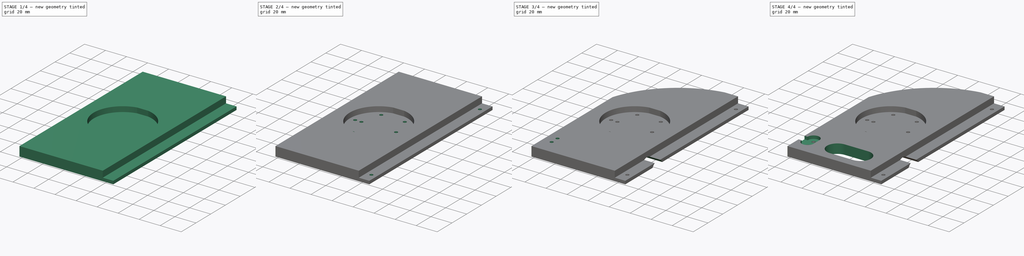
[diagram: build sequence overview — one tinted view per stage of 4, left to right]
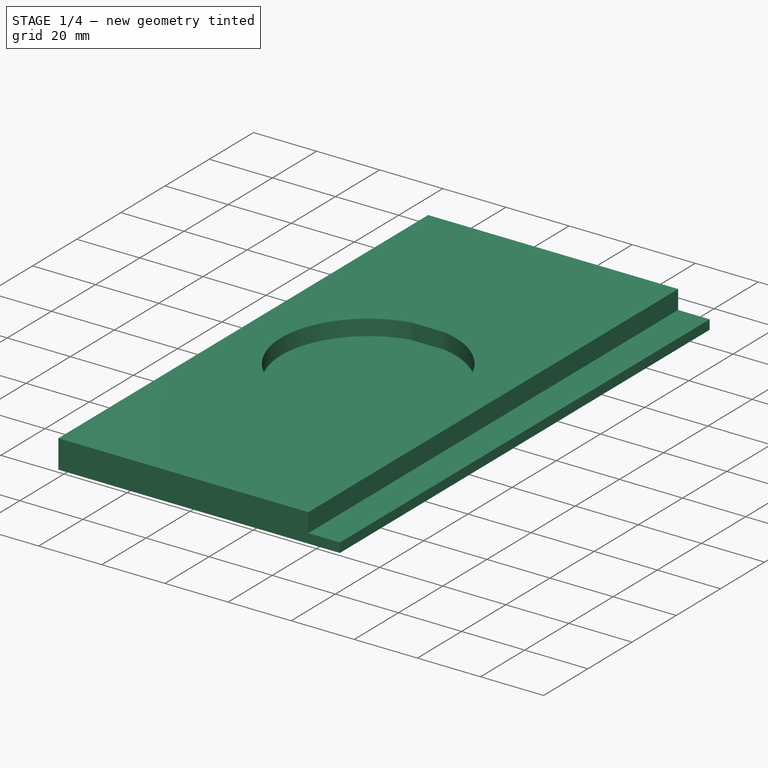
[diagram: stage 1 of 4 — iso view after this stage's code; geometry added in this stage tinted green]
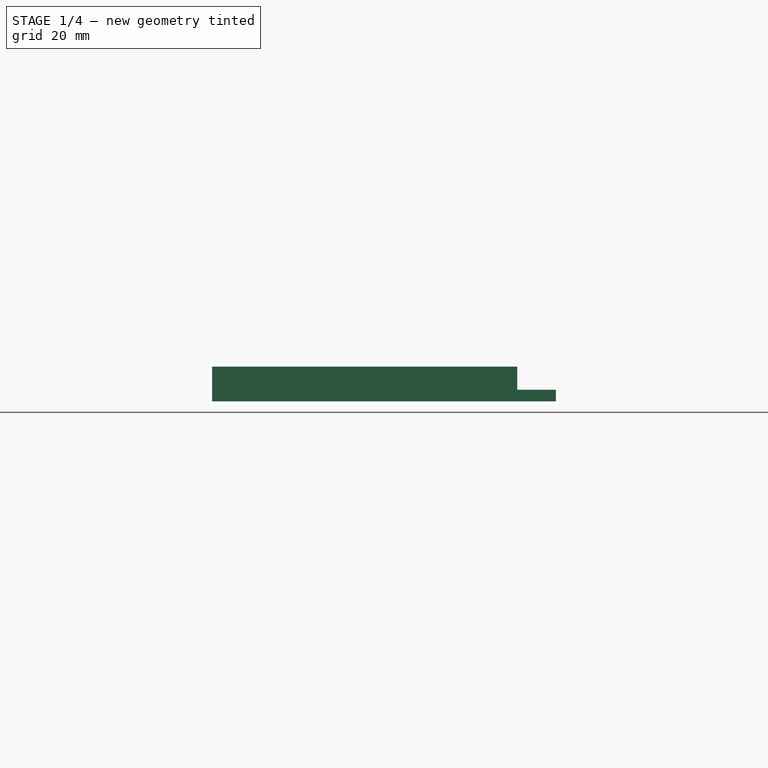
[diagram: stage 1 of 4 — front view after this stage's code; geometry added in this stage tinted green]
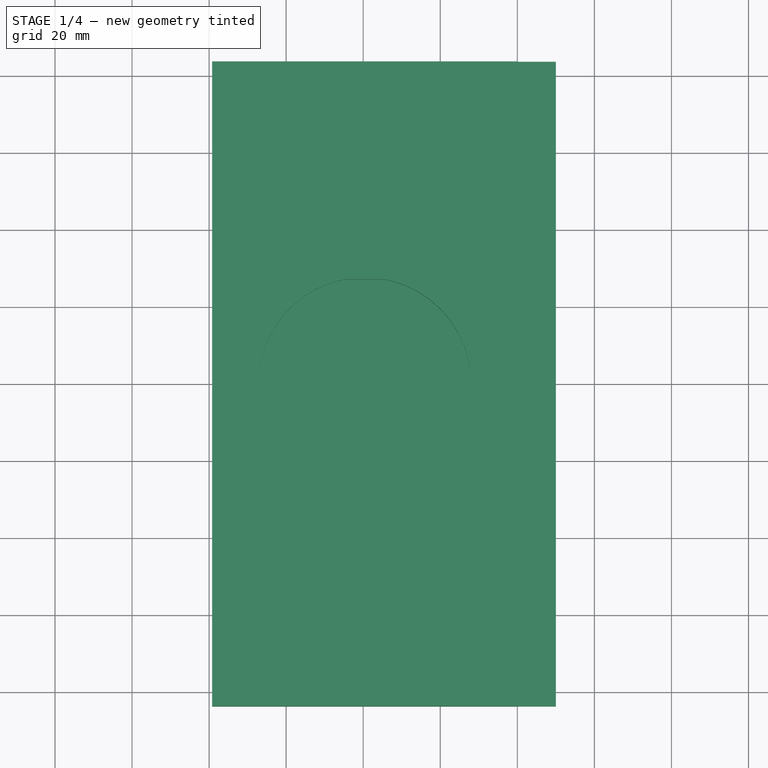
[diagram: stage 1 of 4 — top view after this stage's code; geometry added in this stage tinted green]
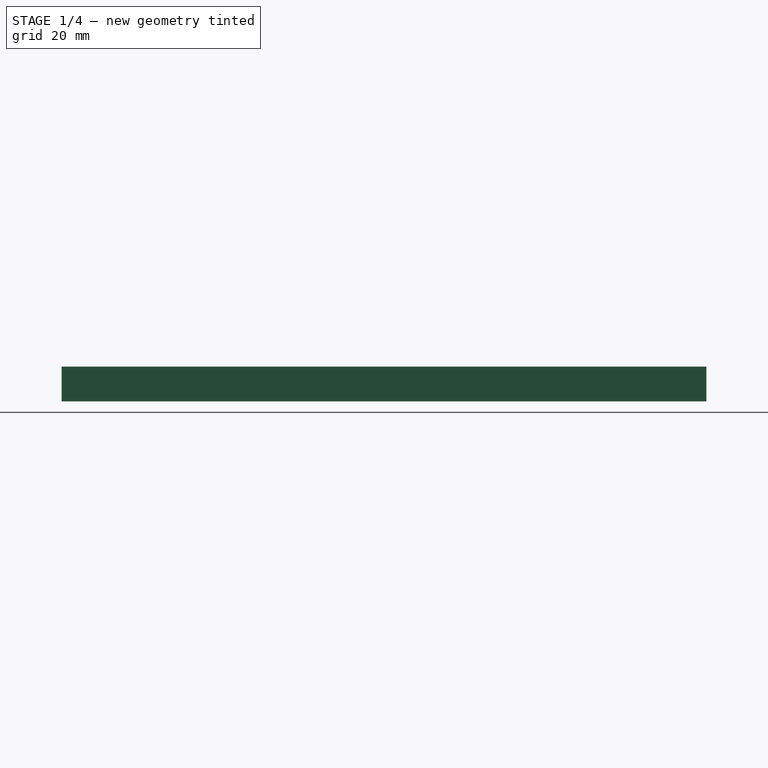
[diagram: stage 1 of 4 — right view after this stage's code; geometry added in this stage tinted green]
FCSTD DOCUMENT  (FreeCAD 0.20R29177 +426 (Git))
Label: base_modular_holder
License: All rights reserved
LicenseURL: http://en.wikipedia.org/wiki/All_rights_reserved
objects: Sketcher::SketchObject×9, PartDesign::Pocket×8, Spreadsheet::Sheet×5, PartDesign::Pad×1, PartDesign::Mirrored×1, PartDesign::Body×1
note: 29 computed .brp shape members not serialized (recipe doc carries the construction recipe); baked Part::Feature solids carry a one-line shape summary decoded from their .brp
EXTERNAL_REF file=l_stick_end.FCStd obj=Sketch002

FEATURE [Spreadsheet::Sheet] Spreadsheet  label="weight_data"
  cells = A1=Name; B1=Value; A2=cap_xlen; B2(cap_xlen)==51.88mm; A3=cap_ylen; B3(cap_ylen)==48.1mm; A4=cap_zlen; B4(cap_zlen)==33.12mm; A5=shaft_dia; B5(shaft_dia)==28.84mm; A6=shaft_zlen; B6(shaft_zlen)==82.14mm; A7=full_zlen; B7(full_zlen)==154.15mm; A8=cap_top_xlen; B8(cap_top_xlen)==27.7mm; A9=space; B9(space)==0.6mm
FEATURE [Sketcher::SketchObject] Sketch
  FullyConstrained = true
  MapMode = 5
  Placement = pos=(0,0,0) rot=(1,0,0;1.5708rad)
  Support = -> [XZ_Plane]
  expr: .Constraints.back_lip_xlen = <<base_data>>.back_side_lip
  expr: .Constraints.l_xlen = Sketch002.Constraints.full_xlen + <<base_data>>.wall_thick
  expr: .Constraints.small_ylen = <<base_data>>.small_base_thick
  expr: .Constraints.thick_ylen = <<base_data>>.base_thick
  expr: Constraints[12] = <<base_data>>.wall_thick
  sketch-geometry (10):
    g0: LineSegment StartX=-6 StartY=9 StartZ=0 EndX=-79.2077 EndY=9 EndZ=0
    g1: LineSegment StartX=-79.2077 StartY=0 StartZ=0 EndX=0 EndY=0 EndZ=0
    g2: LineSegment StartX=-6 StartY=9 StartZ=0 EndX=-6 EndY=0 EndZ=0
    g3: LineSegment StartX=-79.2077 StartY=9 StartZ=0 EndX=-79.2077 EndY=0 EndZ=0
    g4: LineSegment StartX=-79.2077 StartY=0 StartZ=0 EndX=-79.2077 EndY=9 EndZ=0
    g5: LineSegment StartX=-6 StartY=9 StartZ=0 EndX=0 EndY=9 EndZ=0
    g6: LineSegment StartX=0 StartY=9 StartZ=0 EndX=0 EndY=3 EndZ=0
    g7: LineSegment StartX=0 StartY=3 StartZ=0 EndX=10 EndY=3 EndZ=0
    g8: LineSegment StartX=10 StartY=3 StartZ=0 EndX=10 EndY=0 EndZ=0
    g9: LineSegment StartX=10 StartY=0 StartZ=0 EndX=0 EndY=0 EndZ=0
  constraints (29):
    c: Horizontal(g0)
    c: PointOnObject(g1,g-1)
    c: PointOnObject(g2,g1)
    c: Vertical(g2)
    c: DistanceY(g2,g2) = 9  'thick_ylen'
    c: Coincident(g3,g0)
    c: Coincident(g3,g1)
    c: Vertical(g3)
    c: DistanceX(g0,g0) = 73.2077  'l_xlen'
    c: DistanceX(g1,g1) = 79.2077  'full_l_xlen'
    c: Coincident(g4,g1)
    c: Coincident(g4,g0)
    c: DistanceX(g2,g1) = 6
    c: Coincident(g0,g2)
    c: Coincident(g1,g-1)
    c: Coincident(g0,g5)
    c: Horizontal(g5)
    c: Coincident(g5,g6)
    c: PointOnObject(g6,g-2)
    c: Coincident(g6,g7)
    c: Horizontal(g7)
    c: Coincident(g7,g8)
    c: PointOnObject(g8,g-1)
    c: Vertical(g8)
    c: Coincident(g8,g9)
    c: Coincident(g9,g1)
    c: PointOnObject(g5,g-2)
    c: DistanceY(g8,g8) = 3  'small_ylen'
    c: DistanceX(g9,g9) = 10  'back_lip_xlen'
FEATURE [PartDesign::Pad] Pad
  Direction = (0,-1,-2e-16)
  Length = 167.35
  Length2 = 10
  Midplane = true
  Placement = pos=(0,0,0) rot=(1,0,0;1.5708rad)
  Profile = -> Sketch
  ReferenceAxis = -> Sketch [N_Axis]
  Type = 0
  expr: Length = <<weight_data>>.full_zlen + <<weight_data>>.space * 2 + <<base_data>>.wall_thick * 2
FEATURE [Spreadsheet::Sheet] Spreadsheet001  label="base_data"
  cells = A1=Name; B1=Value; A2=wall_thick; B2(wall_thick)==6mm; A3=base_thick; B3(base_thick)==9mm; A4=back_side_lip; B4(back_side_lip)==10mm; A5=small_base_thick; B5(small_base_thick)==wall_thick / 2; A7=stick_cut; B7(stick_cut)==5mm; A8=r_hole_ylen; B8(r_hole_ylen)==40mm; A9=dist_lip_hole_down; B9(dist_lip_hole_down)==10mm
FEATURE [Sketcher::SketchObject] Sketch002
  AttachmentOffset = pos=(0,0,9) rot=(0,0,1;0rad)
  FullyConstrained = true
  MapMode = 5
  Placement = pos=(0,0,9) rot=(0,0,1;0rad)
  Support = -> [XY_Plane]
  expr: .AttachmentOffset.Base.z = <<base_data>>.base_thick
  expr: .Constraints.wall_space = <<base_data>>.wall_thick * 2
  expr: Constraints[15] = l_stick_end#Sketch002.Constraints.thick_ylen + <<weight_data>>.space
  expr: Constraints[17] = 53mm + <<weight_data>>.space * 2
  sketch-geometry (11):
    g0: LineSegment StartX=0 StartY=0 StartZ=0 EndX=-12 EndY=0 EndZ=0
    g1: LineSegment StartX=-12 StartY=0 StartZ=0 EndX=-39.6038 EndY=0 EndZ=0
    g2: LineSegment StartX=-67.2077 StartY=0 StartZ=0 EndX=-39.6038 EndY=0 EndZ=0
    g3: LineSegment StartX=-34.3538 StartY=27.1 StartZ=0 EndX=-34.3538 EndY=-27.1 EndZ=0
    g4: LineSegment StartX=-34.3538 StartY=27.1 StartZ=0 EndX=-39.6038 EndY=27.1 EndZ=0
    g5: LineSegment StartX=-39.6038 StartY=27.1 StartZ=0 EndX=-44.8538 EndY=27.1 EndZ=0
    g6: LineSegment StartX=-39.6038 StartY=0 StartZ=0 EndX=-39.6038 EndY=27.1 EndZ=0
    g7: LineSegment StartX=-44.8538 StartY=-27.1 StartZ=0 EndX=-34.3538 EndY=-27.1 EndZ=0
    g8: LineSegment StartX=-44.8538 StartY=27.1 StartZ=0 EndX=-44.8538 EndY=-27.1 EndZ=0
    g9: ArcOfCircle CenterX=-39.6038 CenterY=0 CenterZ=0 NormalX=0 NormalY=0 NormalZ=1 AngleXU=0 Radius=27.6038 StartAngle=1.76215 EndAngle=4.52103
    g10: ArcOfCircle CenterX=-39.6038 CenterY=0 CenterZ=0 NormalX=0 NormalY=0 NormalZ=1 AngleXU=0 Radius=27.6038 StartAngle=4.90375 EndAngle=7.66263
  constraints (32):
    c: Coincident(g0,g-1)
    c: PointOnObject(g0,g-1)
    c: Coincident(g1,g0)
    c: PointOnObject(g1,g-1)
    c: PointOnObject(g2,g-1)
    c: Coincident(g2,g1)
    c: Equal(g1,g2)
    c: Vertical(g3)
    c: Horizontal(g4)
    c: Coincident(g5,g4)
    c: Horizontal(g5)
    c: Coincident(g6,g1)
    c: Coincident(g6,g4)
    c: Vertical(g6)
    c: Equal(g5,g4)
    c: DistanceX(g4,g4) = 5.25
    c: Vertical(g8)
    c: DistanceY(g8,g8) = 54.2
    c: Coincident(g8,g5)
    c: Coincident(g8,g7)
    c: DistanceX(g0,g0) = 12  'wall_space'
    c: DistanceX(g2,g0) = 67.2077  'full_xlen'
    c: DistanceX(g2,g0) = 55.2077  'in_xlen'
    c: Coincident(g9,g1)
    c: Coincident(g9,g5)
    c: Coincident(g9,g7)
    c: Coincident(g3,g4)
    c: Coincident(g7,g3)
    c: Coincident(g10,g9)
    c: Coincident(g10,g4)
    c: Coincident(g10,g7)
    c: PointOnObject(g0,g10)
FEATURE [Spreadsheet::Sheet] Spreadsheet002  label="libre_data"
  cells = A1=Name; B1=Value; A2=full_xlen; B2(full_xlen)==57.3mm; A3=full_ylen; B3(full_ylen)==102mm; A4=dist_xlen_hole; B4(dist_xlen_hole)==51.46mm; C4=taken end to end not center; A5=hole_dia; B5(hole_dia)==2.8mm; A6=space; B6(space)==0.4mm; A7=dist_ylen_hole; B7(dist_ylen_hole)==60.58mm
FEATURE [PartDesign::Pocket] Pocket001
  BaseFeature = -> Pad
  Direction = (0,0,-1)
  Length = 5
  Length2 = 5
  Placement = pos=(0,0,0) rot=(1,0,0;1.5708rad)
  Profile = -> Sketch002
  ReferenceAxis = -> Sketch002 [N_Axis]
  Type = 0
  expr: Length = <<base_data>>.stick_cut
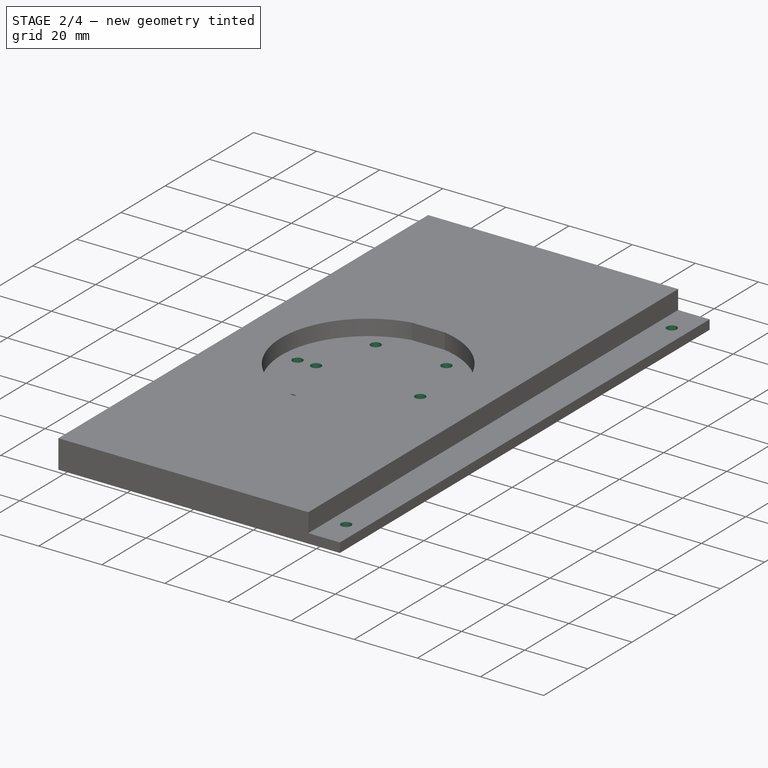
[diagram: stage 2 of 4 — iso view after this stage's code; geometry added in this stage tinted green]
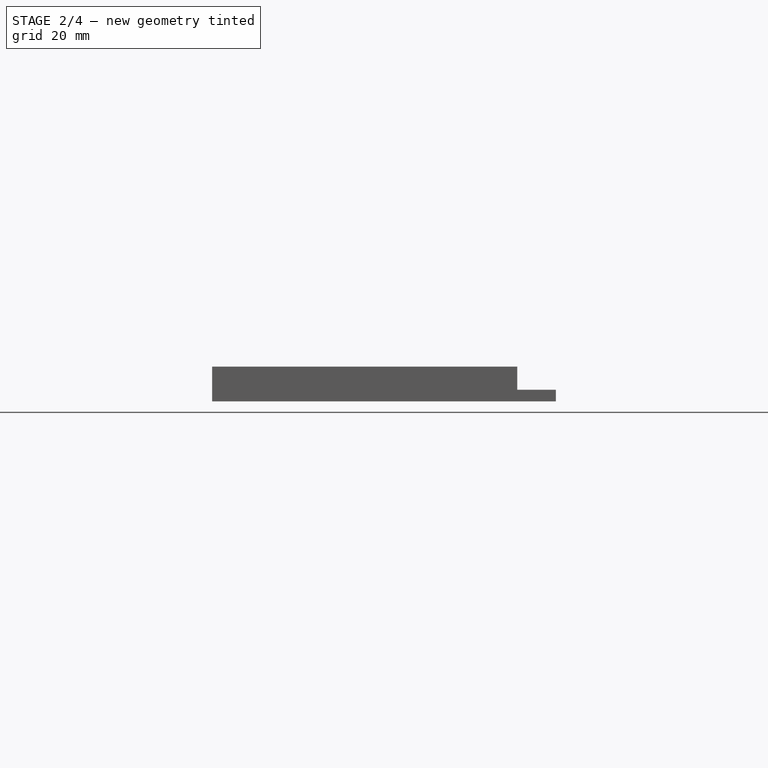
[diagram: stage 2 of 4 — front view after this stage's code; geometry added in this stage tinted green]
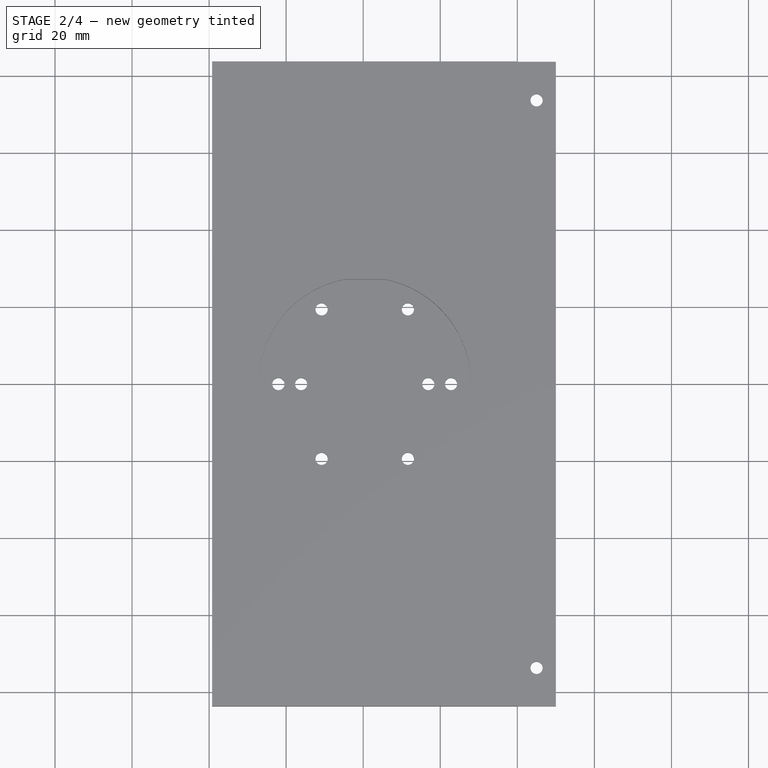
[diagram: stage 2 of 4 — top view after this stage's code; geometry added in this stage tinted green]
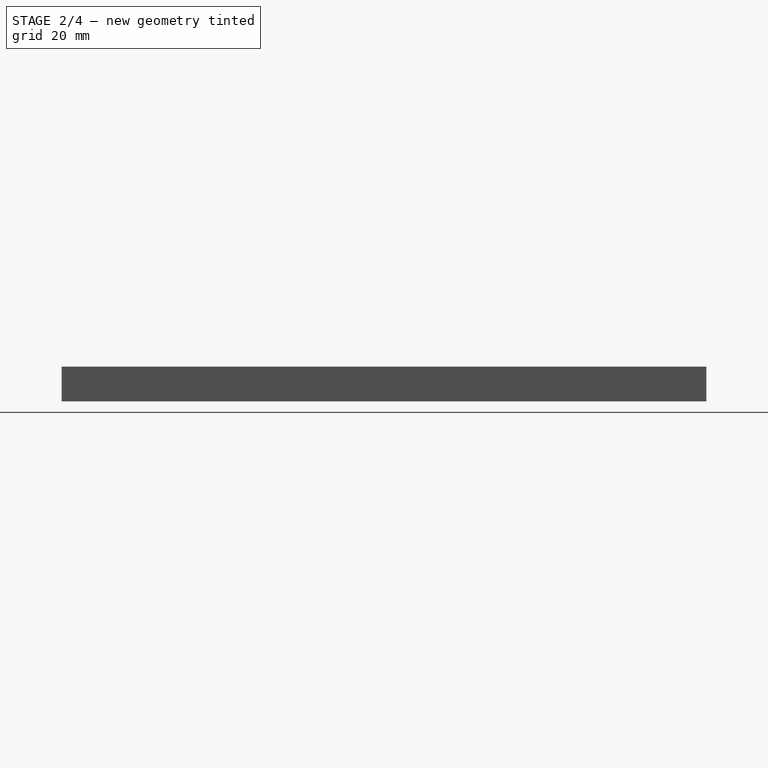
[diagram: stage 2 of 4 — right view after this stage's code; geometry added in this stage tinted green]
FEATURE [Sketcher::SketchObject] Sketch003
  FullyConstrained = true
  MapMode = 5
  Support = -> [XY_Plane]
  expr: .Constraints.dia = <<l_stick_end>>#<<Sketch002>>.Constraints.hole_dia
  expr: .Constraints.dist_down = <<l_stick_end>>#<<Sketch002>>.Constraints.dist_down
  expr: .Constraints.l_angle = <<l_stick_end>>#<<Sketch002>>.Constraints.l_angle
  expr: Constraints[13] = 53mm
  expr: Constraints[20] = l_stick_end#Sketch002.Constraints.thick_ylen
  expr: Constraints[34] = .Constraints.l_angle
  expr: Constraints[35] = .Constraints.l_angle
  expr: Constraints[36] = .Constraints.l_angle
  expr: Constraints[46] = .Constraints.dist_down
  expr: Constraints[47] = .Constraints.dist_down
  expr: Constraints[48] = .Constraints.dist_down
  expr: Constraints[58] = .Constraints.dist_down
  expr: Constraints[60] = .Constraints.dist_down
  expr: Constraints[61] = <<l_stick_end>>#<<Sketch002>>.Constraints.dist_holes_ylen
  expr: Constraints[62] = <<l_stick_end>>#<<Sketch002>>.Constraints.dist_holes_ylen
  expr: Constraints[7] = Sketch002.Constraints.wall_space
  expr: Constraints[8] = Sketch002.Constraints.in_xlen
  sketch-geometry (27):
    g0: LineSegment StartX=0 StartY=0 StartZ=0 EndX=-12 EndY=0 EndZ=0
    g1: LineSegment StartX=-12 StartY=0 StartZ=0 EndX=-39.6038 EndY=0 EndZ=0
    g2: LineSegment StartX=-39.6038 StartY=0 StartZ=0 EndX=-67.2077 EndY=0 EndZ=0
    g3: LineSegment StartX=-39.6038 StartY=0 StartZ=0 EndX=-39.6038 EndY=26.5 EndZ=0
    g4: LineSegment StartX=-39.6038 StartY=0 StartZ=0 EndX=-39.6038 EndY=-26.5 EndZ=0
    g5: LineSegment StartX=-39.6038 StartY=26.5 StartZ=0 EndX=-44.2538 EndY=26.5 EndZ=0
    g6: LineSegment StartX=-39.6038 StartY=26.5 StartZ=0 EndX=-34.9538 EndY=26.5 EndZ=0
    g7: LineSegment StartX=-39.6038 StartY=-26.5 StartZ=0 EndX=-34.9538 EndY=-26.5 EndZ=0
    g8: LineSegment StartX=-39.6038 StartY=-26.5 StartZ=0 EndX=-44.2538 EndY=-26.5 EndZ=0
    g9: LineSegment StartX=-44.2538 StartY=26.5 StartZ=0 EndX=-44.2538 EndY=-26.5 EndZ=0
    g10: LineSegment StartX=-34.9538 StartY=26.5 StartZ=0 EndX=-34.9538 EndY=-26.5 EndZ=0
    g11: LineSegment StartX=-39.6038 StartY=0 StartZ=0 EndX=-53.0563 EndY=-23.3003 EndZ=0
    g12: LineSegment StartX=-39.6038 StartY=0 StartZ=0 EndX=-53.0563 EndY=23.3003 EndZ=0
    g13: LineSegment StartX=-39.6038 StartY=0 StartZ=0 EndX=-26.1514 EndY=23.3003 EndZ=0
    g14: LineSegment StartX=-39.6038 StartY=0 StartZ=0 EndX=-26.1514 EndY=-23.3003 EndZ=0
    g15: Circle CenterX=-50.8063 CenterY=-19.4032 CenterZ=0 NormalX=0 NormalY=0 NormalZ=1 AngleXU=0 Radius=1.58
    g16: Circle CenterX=-28.4014 CenterY=-19.4032 CenterZ=0 NormalX=0 NormalY=0 NormalZ=1 AngleXU=0 Radius=1.58
    g17: Circle CenterX=-28.4014 CenterY=19.4032 CenterZ=0 NormalX=0 NormalY=0 NormalZ=1 AngleXU=0 Radius=1.58
    g18: Circle CenterX=-50.8063 CenterY=19.4032 CenterZ=0 NormalX=0 NormalY=0 NormalZ=1 AngleXU=0 Radius=1.58
    g19: Circle CenterX=-62.0087 CenterY=0 CenterZ=0 NormalX=0 NormalY=0 NormalZ=1 AngleXU=0 Radius=1.58
    g20: Circle CenterX=-56.1087 CenterY=0 CenterZ=0 NormalX=0 NormalY=0 NormalZ=1 AngleXU=0 Radius=1.58
    g21: Circle CenterX=-17.199 CenterY=0 CenterZ=0 NormalX=0 NormalY=0 NormalZ=1 AngleXU=0 Radius=1.58
    g22: Circle CenterX=-23.099 CenterY=0 CenterZ=0 NormalX=0 NormalY=0 NormalZ=1 AngleXU=0 Radius=1.58
    g23: GeomPoint X=-66.5087 Y=0 Z=0
    g24: GeomPoint X=-12.699 Y=0 Z=0
    g25: ArcOfCircle CenterX=-39.6038 CenterY=0 CenterZ=0 NormalX=0 NormalY=0 NormalZ=1 AngleXU=0 Radius=26.9049 StartAngle=1.7445 EndAngle=4.53869
    g26: ArcOfCircle CenterX=-39.6038 CenterY=0 CenterZ=0 NormalX=0 NormalY=0 NormalZ=1 AngleXU=0 Radius=26.9049 StartAngle=4.88609 EndAngle=7.68028
  constraints (75):
    c: Coincident(g0,g-1)
    c: PointOnObject(g0,g-1)
    c: Coincident(g1,g0)
    c: PointOnObject(g1,g-1)
    c: Coincident(g2,g1)
    c: PointOnObject(g2,g-1)
    c: Equal(g2,g1)
    c: DistanceX(g0,g0) = 12
    c: DistanceX(g2,g0) = 55.2077
    c: Coincident(g3,g1)
    c: Vertical(g3)
    c: Coincident(g4,g1)
    c: Vertical(g4)
    c: DistanceY(g4,g3) = 53
    c: Equal(g3,g4)
    c: Coincident(g5,g3)
    c: Horizontal(g5)
    c: Coincident(g6,g3)
    c: Horizontal(g6)
    c: Equal(g5,g6)
    c: DistanceX(g6,g6) = 4.65
    c: Coincident(g7,g4)
    c: Horizontal(g7)
    c: Coincident(g8,g4)
    c: Horizontal(g8)
    c: Coincident(g9,g5)
    c: Coincident(g9,g8)
    c: Coincident(g10,g6)
    c: Coincident(g10,g7)
    c: Coincident(g11,g1)
    c: Coincident(g12,g1)
    c: Coincident(g13,g1)
    c: Coincident(g14,g1)
    c: Angle(g11,g4) = 0.523599  'l_angle'
    c: Angle(g4,g14) = 0.523599
    c: Angle(g3,g12) = 0.523599
    c: Angle(g13,g3) = 0.523599
    c: PointOnObject(g15,g11)
    c: PointOnObject(g16,g14)
    c: PointOnObject(g17,g13)
    c: PointOnObject(g18,g12)
    c: Equal(g18,g17)
    c: Equal(g17,g16)
    c: Equal(g16,g15)
    c: Diameter(g15) = 3.16  'dia'
    c: Distance(g15,g11) = 4.5  'dist_down'
    c: Distance(g16,g14) = 4.5
    c: Distance(g13,g17) = 4.5
    c: Distance(g12,g18) = 4.5
    c: PointOnObject(g19,g2)
    c: PointOnObject(g20,g2)
    c: PointOnObject(g21,g1)
    c: PointOnObject(g22,g1)
    c: Equal(g22,g21)
    c: Equal(g22,g20)
    c: Equal(g20,g19)
    c: Equal(g15,g19)
    c: PointOnObject(g23,g2)
    c: DistanceX(g23,g19) = 4.5
    c: PointOnObject(g24,g1)
    c: DistanceX(g21,g24) = 4.5
    c: DistanceX(g22,g21) = 5.9
    c: DistanceX(g19,g20) = 5.9
    c: Coincident(g25,g1)
    c: Coincident(g25,g5)
    c: Coincident(g25,g8)
    c: Coincident(g26,g1)
    c: Coincident(g26,g6)
    c: Coincident(g26,g7)
    c: PointOnObject(g24,g26)
    c: PointOnObject(g23,g25)
    c: PointOnObject(g11,g25)
    c: PointOnObject(g14,g26)
    c: PointOnObject(g13,g26)
    c: PointOnObject(g12,g25)
FEATURE [PartDesign::Pocket] Pocket002
  BaseFeature = -> Pocket001
  Direction = (0,0,-1)
  Length = 5
  Length2 = 5
  Placement = pos=(0,0,0) rot=(1,0,0;1.5708rad)
  Profile = -> Sketch003
  ReferenceAxis = -> Sketch003 [N_Axis]
  Reversed = true
  Type = 1
FEATURE [Sketcher::SketchObject] Sketch005
  FullyConstrained = false
  MapMode = 5
  Support = -> [XY_Plane]
  expr: Constraints[8] = Sketch.Constraints.full_l_xlen
  sketch-geometry (8):
    g0: LineSegment StartX=0 StartY=0 StartZ=0 EndX=-79.2077 EndY=0 EndZ=0
    g1: LineSegment StartX=-79.2077 StartY=0 StartZ=0 EndX=-79.2077 EndY=26.4457 EndZ=0
    g2: LineSegment StartX=-79.2077 StartY=0 StartZ=0 EndX=-79.2077 EndY=-26.4457 EndZ=0
    g3: ArcOfCircle CenterX=0.662285 CenterY=0.9037 CenterZ=0 NormalX=0 NormalY=0 NormalZ=1 AngleXU=0 Radius=83.8547 StartAngle=1.64014 EndAngle=2.83208
    g4: LineSegment StartX=-79.2077 StartY=26.4457 StartZ=0 EndX=-107.36 EndY=26.4457 EndZ=0
    g5: LineSegment StartX=-107.36 StartY=26.4457 StartZ=0 EndX=-107.36 EndY=113.139 EndZ=0
    g6: LineSegment StartX=-5.14749 StartY=84.5569 StartZ=0 EndX=-5.14749 EndY=113.139 EndZ=0
    g7: LineSegment StartX=-5.14749 StartY=113.139 StartZ=0 EndX=-107.36 EndY=113.139 EndZ=0
  constraints (18):
    c: Coincident(g0,g-1)
    c: PointOnObject(g0,g-1)
    c: Coincident(g1,g0)
    c: Vertical(g1)
    c: Coincident(g2,g0)
    c: Vertical(g2)
    c: Equal(g1,g2)
    c: Coincident(g3,g1)
    c: DistanceX(g0,g0) = 79.2077
    c: Coincident(g4,g3)
    c: Horizontal(g4)
    c: Coincident(g5,g4)
    c: Vertical(g5)
    c: Coincident(g6,g3)
    c: Coincident(g7,g6)
    c: Coincident(g7,g5)
    c: Horizontal(g7)
    c: Vertical(g6)
FEATURE [Sketcher::SketchObject] Sketch006
  FullyConstrained = true
  MapMode = 5
  Support = -> [XY_Plane]
  expr: .Constraints.hole_ylen = <<Pad>>.Length / 2 - <<base_data>>.dist_lip_hole_down
  expr: Constraints[4] = <<Sketch>>.Constraints.back_lip_xlen / 2
  expr: Constraints[7] = <<Sketch003>>.Constraints.dia
  sketch-geometry (3):
    g0: LineSegment StartX=0 StartY=0 StartZ=0 EndX=5 EndY=0 EndZ=0
    g1: LineSegment StartX=5 StartY=0 StartZ=0 EndX=5 EndY=73.675 EndZ=0
    g2: Circle CenterX=5 CenterY=73.675 CenterZ=0 NormalX=0 NormalY=0 NormalZ=1 AngleXU=0 Radius=1.58
  constraints (8):
    c: Coincident(g0,g-1)
    c: PointOnObject(g0,g-1)
    c: Coincident(g1,g0)
    c: Vertical(g1)
    c: DistanceX(g0,g0) = 5
    c: DistanceY(g1,g1) = 73.675  'hole_ylen'
    c: Coincident(g2,g1)
    c: Diameter(g2) = 3.16
FEATURE [PartDesign::Pocket] Pocket
  BaseFeature = -> Pocket002
  Direction = (0,0,-1)
  Length = 5
  Length2 = 5
  Midplane = true
  Placement = pos=(0,0,0) rot=(1,0,0;1.5708rad)
  Profile = -> Sketch006
  ReferenceAxis = -> Sketch006 [N_Axis]
  Type = 1
FEATURE [PartDesign::Mirrored] Mirrored
  BaseFeature = -> Pocket
  MirrorPlane = -> Sketch006 [H_Axis]
  Originals = -> [Pocket]
  Placement = pos=(0,0,0) rot=(1,0,0;1.5708rad)
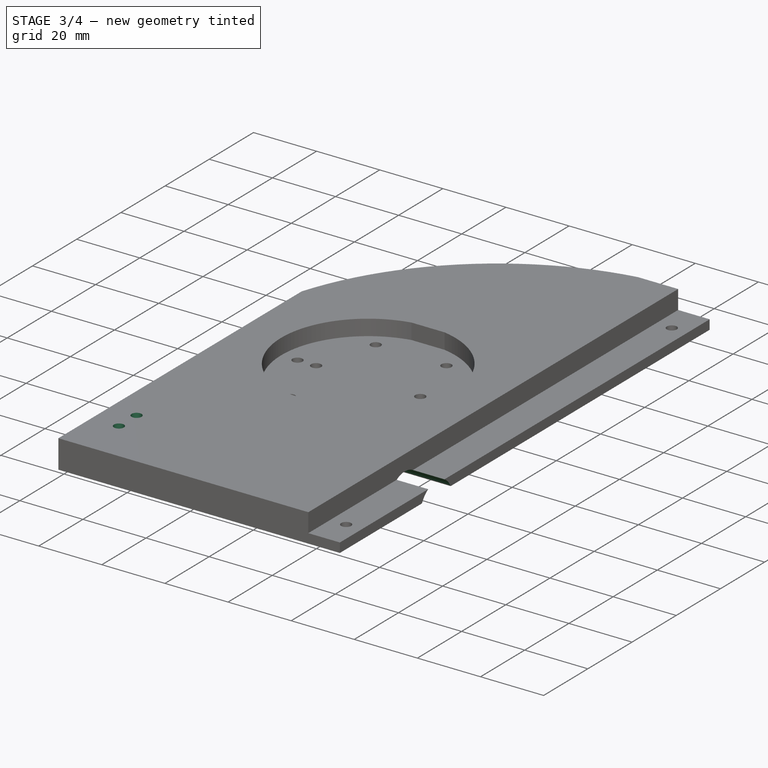
[diagram: stage 3 of 4 — iso view after this stage's code; geometry added in this stage tinted green]
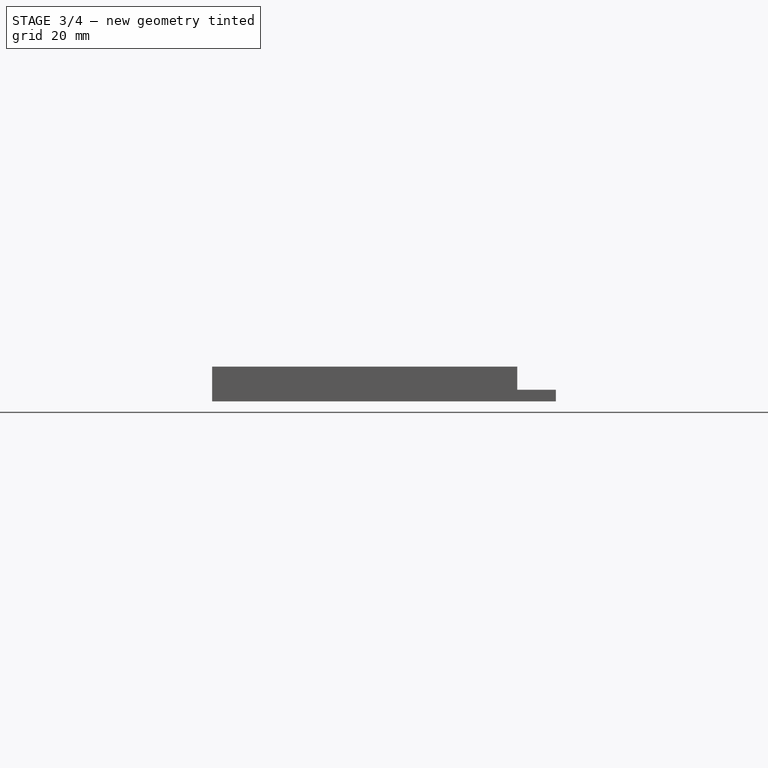
[diagram: stage 3 of 4 — front view after this stage's code; geometry added in this stage tinted green]
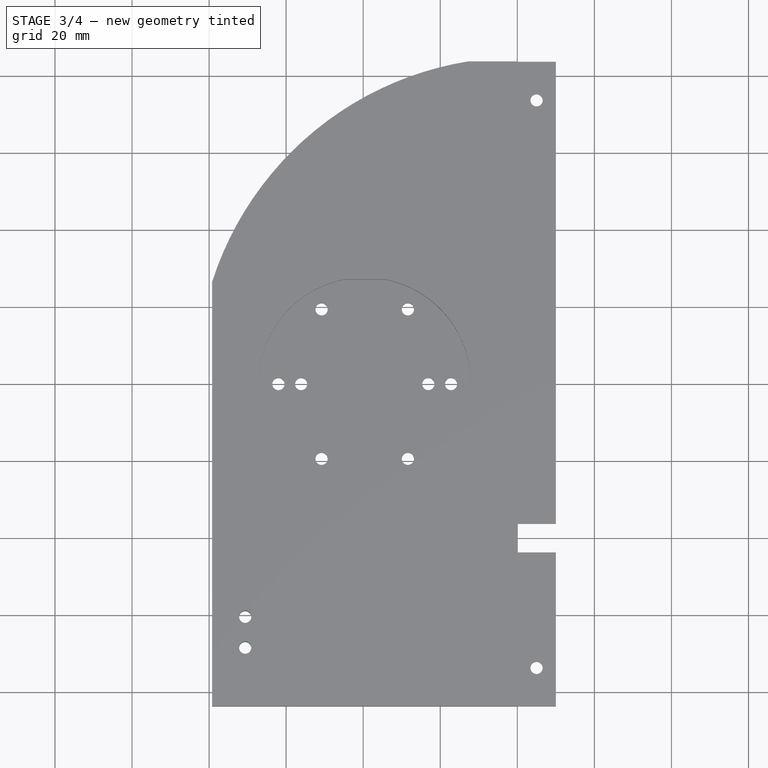
[diagram: stage 3 of 4 — top view after this stage's code; geometry added in this stage tinted green]
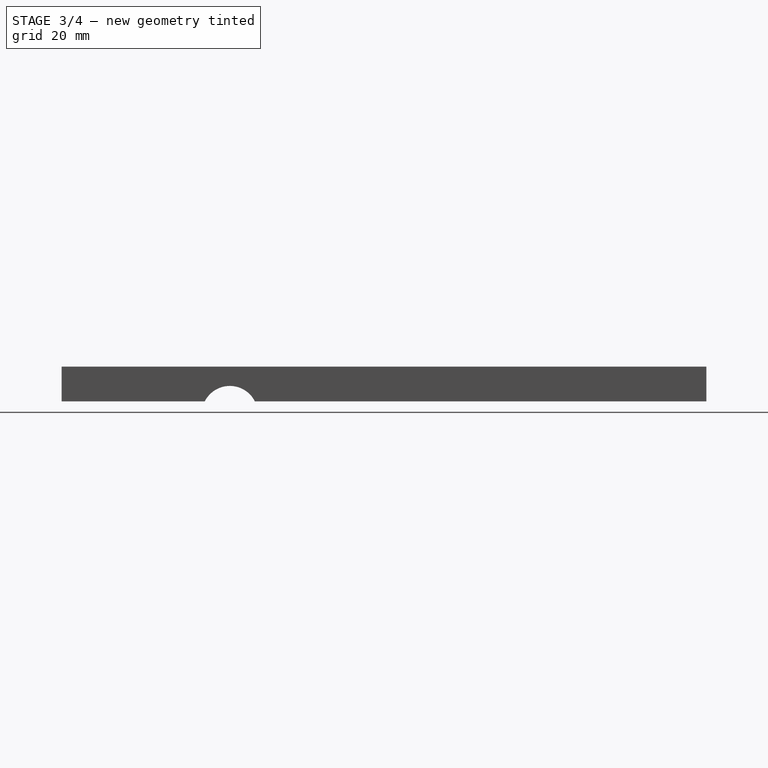
[diagram: stage 3 of 4 — right view after this stage's code; geometry added in this stage tinted green]
FEATURE [Spreadsheet::Sheet] Spreadsheet003  label="button_connect_data"
  cells = A1=Name; B1=Value; A2=screw_dia; B2(screw_dia)==Sketch003.Constraints.dia; A3=dist_screw_dias; B3(dist_screw_dias)==8mm; A4=wall_dia; B4(wall_dia)==4mm; A5=dist_in_base; B5(dist_in_base)==3mm; A6=dist_off_side_base; B6(dist_off_side_base)==dist_screw_dias + screw_dia + wall_dia + wall_dia; A7=clasp_thick; B7(clasp_thick)==3mm; A8=center_connect2center_hole; B8(center_connect2center_hole)==dist_screw_dias + <<wire_hole_data>>.wire_xlen / 2 + wall_dia * 2.5
FEATURE [Sketcher::SketchObject] Sketch007
  AttachmentOffset = pos=(0,0,9) rot=(0,0,1;0rad)
  FullyConstrained = true
  MapMode = 5
  Placement = pos=(0,0,9) rot=(0,0,1;0rad)
  Support = -> [XY_Plane]
  expr: .AttachmentOffset.Base.z = <<Sketch>>.Constraints.thick_ylen
  expr: Constraints[11] = <<button_connect_data>>.dist_in_base
  expr: Constraints[20] = <<button_connect_data>>.dist_screw_dias
  expr: Constraints[2] = <<Pad>>.Length / 2
  expr: Constraints[40] = <<button_connect_data>>.wall_dia
  expr: Constraints[57] = <<button_connect_data>>.screw_dia
  expr: Constraints[7] = <<Sketch>>.Constraints.l_xlen + <<base_data>>.wall_thick
  expr: Constraints[8] = <<button_connect_data>>.dist_off_side_base
  sketch-geometry (21):
    g0: LineSegment StartX=0 StartY=0 StartZ=0 EndX=0 EndY=-83.675 EndZ=0
    g1: LineSegment StartX=0 StartY=-83.675 StartZ=0 EndX=-79.2077 EndY=-83.675 EndZ=0
    g2: LineSegment StartX=-79.2077 StartY=-83.675 StartZ=0 EndX=-79.2077 EndY=-64.515 EndZ=0
    g3: LineSegment StartX=-79.2077 StartY=-64.515 StartZ=0 EndX=-76.2077 EndY=-64.515 EndZ=0
    g4: LineSegment StartX=-79.2077 StartY=-64.515 StartZ=0 EndX=-79.2077 EndY=-68.515 EndZ=0
    g5: LineSegment StartX=-79.2077 StartY=-64.515 StartZ=0 EndX=-79.2077 EndY=-60.515 EndZ=0
    g6: LineSegment StartX=-76.2077 StartY=-68.515 StartZ=0 EndX=-76.2077 EndY=-60.515 EndZ=0
    g7: LineSegment StartX=-70.6277 StartY=-60.515 StartZ=0 EndX=-70.6277 EndY=-68.515 EndZ=0
    g8: ArcOfCircle CenterX=-70.6277 CenterY=-68.515 CenterZ=0 NormalX=0 NormalY=0 NormalZ=1 AngleXU=0 Radius=5.58 StartAngle=3.14159 EndAngle=6.28319
    g9: ArcOfCircle CenterX=-70.6277 CenterY=-60.515 CenterZ=0 NormalX=0 NormalY=0 NormalZ=1 AngleXU=0 Radius=5.58 StartAngle=6.28319 EndAngle=9.42478
    g10: LineSegment StartX=-76.2077 StartY=-64.515 StartZ=0 EndX=-70.6277 EndY=-64.515 EndZ=0
    g11: LineSegment StartX=-70.6277 StartY=-64.515 StartZ=0 EndX=-65.0477 EndY=-64.515 EndZ=0
    g12: LineSegment StartX=-65.0477 StartY=-60.515 StartZ=0 EndX=-65.0477 EndY=-64.515 EndZ=0
    g13: LineSegment StartX=-65.0477 StartY=-68.515 StartZ=0 EndX=-65.0477 EndY=-64.515 EndZ=0
    g14: LineSegment StartX=-76.2077 StartY=-68.515 StartZ=0 EndX=-65.0477 EndY=-68.515 EndZ=0
    g15: LineSegment StartX=-76.2077 StartY=-60.515 StartZ=0 EndX=-65.0477 EndY=-60.515 EndZ=0
    g16: LineSegment StartX=-70.6277 StartY=-68.515 StartZ=0 EndX=-70.6277 EndY=-74.095 EndZ=0
    g17: GeomPoint X=-70.6277 Y=-70.095 Z=0
    g18: LineSegment StartX=-76.2077 StartY=-60.515 StartZ=0 EndX=-79.2077 EndY=-60.515 EndZ=0
    g19: LineSegment StartX=-76.2077 StartY=-68.515 StartZ=0 EndX=-79.2077 EndY=-68.515 EndZ=0
    g20: Circle CenterX=-70.6277 CenterY=-68.515 CenterZ=0 NormalX=0 NormalY=0 NormalZ=1 AngleXU=0 Radius=1.58
  constraints (60):
    c: Coincident(g0,g-1)
    c: PointOnObject(g0,g-2)
    c: DistanceY(g0,g0) = 83.675
    c: Coincident(g1,g0)
    c: Horizontal(g1)
    c: Coincident(g2,g1)
    c: Vertical(g2)
    c: DistanceX(g1,g1) = 79.2077
    c: DistanceY(g2,g2) = 19.16
    c: Coincident(g3,g2)
    c: Horizontal(g3)
    c: DistanceX(g3,g3) = 3
    c: Coincident(g4,g2)
    c: PointOnObject(g4,g2)
    c: Coincident(g5,g4)
    c: Vertical(g5)
    c: Equal(g5,g4)
    c: Vertical(g6)
    c: PointOnObject(g3,g6)
    c: Vertical(g7)
    c: DistanceY(g7,g7) = 8
    c: Coincident(g10,g3)
    c: PointOnObject(g10,g7)
    c: Horizontal(g10)
    c: Coincident(g11,g10)
    c: Horizontal(g11)
    c: Coincident(g12,g9)
    c: Coincident(g12,g11)
    c: Coincident(g13,g8)
    c: Coincident(g13,g12)
    c: Vertical(g13)
    c: Equal(g12,g13)
    c: Coincident(g14,g8)
    c: Coincident(g15,g9)
    c: Horizontal(g15)
    c: Horizontal(g14)
    c: DistanceY(g4,g5) = 8
    c: Vertical(g16)
    c: PointOnObject(g16,g8)
    c: PointOnObject(g17,g16)
    c: DistanceY(g16,g17) = 4
    c: Coincident(g8,g14)
    c: Coincident(g6,g8)
    c: Coincident(g9,g6)
    c: Coincident(g15,g9)
    c: Equal(g9,g8)
    c: Coincident(g18,g9)
    c: Coincident(g18,g5)
    c: Coincident(g19,g8)
    c: Coincident(g19,g4)
    c: Horizontal(g18)
    c: Coincident(g8,g16)
    c: PointOnObject(g8,g14)
    c: Coincident(g7,g8)
    c: Coincident(g9,g7)
    c: Coincident(g20,g8)
    c: PointOnObject(g17,g20)
    c: Diameter(g20) = 3.16
    c: DistanceY(g12,g0) = 64.515  'center_ylen'
    c: DistanceX(g10,g0) = 70.6277  'center_xlen'
FEATURE [Sketcher::SketchObject] Sketch008
  FullyConstrained = true
  MapMode = 5
  Support = -> [XY_Plane]
  expr: Constraints[10] = <<button_connect_data>>.dist_screw_dias
  expr: Constraints[15] = <<button_connect_data>>.screw_dia
  expr: Constraints[4] = <<Sketch007>>.Constraints.center_ylen
  expr: Constraints[5] = <<Sketch007>>.Constraints.center_xlen
  sketch-geometry (6):
    g0: LineSegment StartX=0 StartY=0 StartZ=0 EndX=0 EndY=-64.515 EndZ=0
    g1: LineSegment StartX=0 StartY=-64.515 StartZ=0 EndX=-70.6277 EndY=-64.515 EndZ=0
    g2: LineSegment StartX=-70.6277 StartY=-64.515 StartZ=0 EndX=-70.6277 EndY=-60.515 EndZ=0
    g3: LineSegment StartX=-70.6277 StartY=-64.515 StartZ=0 EndX=-70.6277 EndY=-68.515 EndZ=0
    g4: Circle CenterX=-70.6277 CenterY=-68.515 CenterZ=0 NormalX=0 NormalY=0 NormalZ=1 AngleXU=0 Radius=1.58
    g5: Circle CenterX=-70.6277 CenterY=-60.515 CenterZ=0 NormalX=0 NormalY=0 NormalZ=1 AngleXU=0 Radius=1.58
  constraints (16):
    c: Coincident(g0,g-1)
    c: PointOnObject(g0,g-2)
    c: Coincident(g1,g0)
    c: Horizontal(g1)
    c: DistanceY(g0,g0) = 64.515
    c: DistanceX(g1,g1) = 70.6277
    c: Coincident(g2,g1)
    c: Vertical(g2)
    c: Coincident(g3,g1)
    c: Vertical(g3)
    c: DistanceY(g3,g2) = 8
    c: Equal(g2,g3)
    c: Coincident(g4,g3)
    c: Coincident(g5,g2)
    c: Equal(g5,g4)
    c: Diameter(g5) = 3.16
FEATURE [PartDesign::Pocket] Pocket004
  BaseFeature = -> Mirrored
  Direction = (0,0,-1)
  Length = 5
  Length2 = 5
  Midplane = true
  Placement = pos=(0,0,0) rot=(1,0,0;1.5708rad)
  Profile = -> Sketch008
  ReferenceAxis = -> Sketch008 [N_Axis]
  Type = 1
FEATURE [PartDesign::Pocket] Pocket005
  BaseFeature = -> Pocket004
  Direction = (0,0,-1)
  Length = 5
  Length2 = 5
  Midplane = true
  Placement = pos=(0,0,0) rot=(1,0,0;1.5708rad)
  Profile = -> Sketch005
  ReferenceAxis = -> Sketch005 [N_Axis]
  Type = 1
FEATURE [Sketcher::SketchObject] Sketch009
  FullyConstrained = true
  MapMode = 5
  Placement = pos=(0,0,0) rot=(0.57735,0.57735,0.57735;2.0944rad)
  Support = -> [YZ_Plane]
  expr: .Constraints.xlen = <<Sketch007>>.Constraints.center_ylen - <<button_connect_data>>.center_connect2center_hole
  expr: Constraints[14] = <<wire_hole_data>>.wire_ylen
  expr: Constraints[8] = <<wire_hole_data>>.wire_xlen
  sketch-geometry (6):
    g0: LineSegment StartX=0 StartY=1.554e-13 StartZ=0 EndX=-33.515 EndY=1.554e-13 EndZ=0
    g1: ArcOfCircle CenterX=-40.015 CenterY=-3.28125 CenterZ=0 NormalX=0 NormalY=0 NormalZ=1 AngleXU=0 Radius=7.28125 StartAngle=0.467486 EndAngle=2.67411
    g2: GeomPoint X=-40.015 Y=4 Z=0
    g3: LineSegment StartX=-40.015 StartY=4 StartZ=0 EndX=-40.015 EndY=0 EndZ=0
    g4: LineSegment StartX=-40.015 StartY=0 StartZ=0 EndX=-46.515 EndY=1.528e-13 EndZ=0
    g5: LineSegment StartX=-40.015 StartY=0 StartZ=0 EndX=-33.515 EndY=1.554e-13 EndZ=0
  constraints (16):
    c: Coincident(g0,g-1)
    c: Horizontal(g0)
    c: Coincident(g1,g0)
    c: PointOnObject(g1,g-1)
    c: PointOnObject(g2,g1)
    c: Coincident(g3,g2)
    c: PointOnObject(g3,g-1)
    c: Vertical(g3)
    c: DistanceX(g1,g1) = 13
    c: Coincident(g4,g3)
    c: Coincident(g4,g1)
    c: Coincident(g5,g4)
    c: Coincident(g5,g1)
    c: Equal(g4,g5)
    c: DistanceY(g3,g3) = 4
    c: DistanceX(g4,g0) = 40.015  'xlen'
FEATURE [PartDesign::Pocket] Pocket006
  BaseFeature = -> Pocket005
  Direction = (-1,2e-16,-3e-16)
  Length = 5
  Length2 = 5
  Midplane = true
  Placement = pos=(0,0,0) rot=(1,0,0;1.5708rad)
  Profile = -> Sketch009
  ReferenceAxis = -> Sketch009 [N_Axis]
  Type = 1
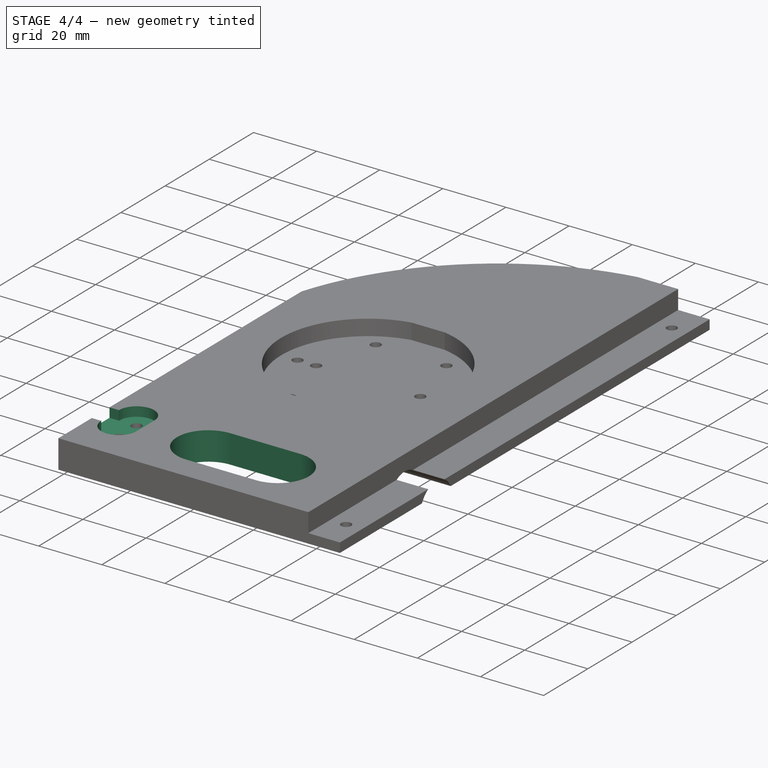
[diagram: stage 4 of 4 — iso view after this stage's code; geometry added in this stage tinted green]
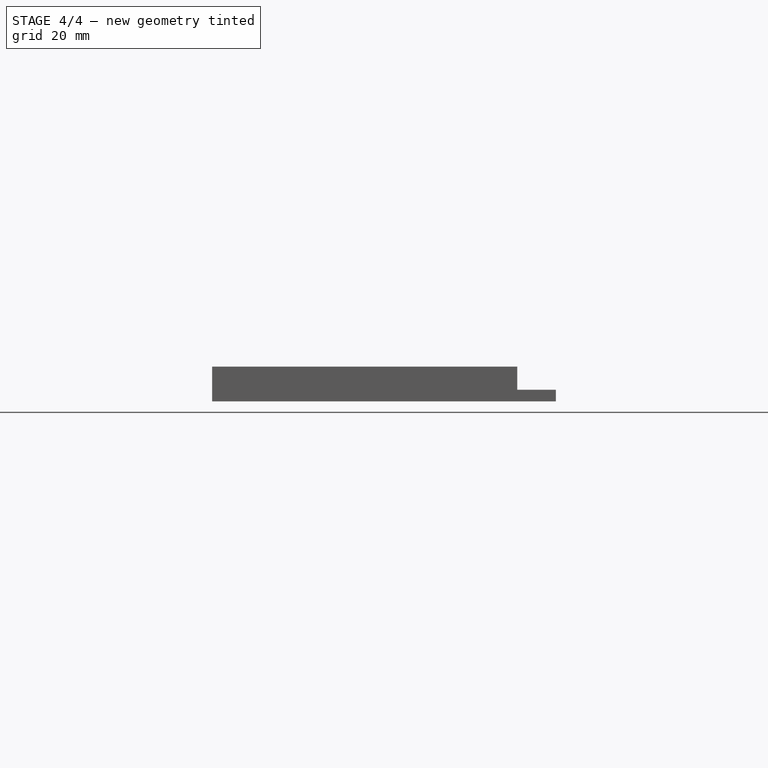
[diagram: stage 4 of 4 — front view after this stage's code; geometry added in this stage tinted green]
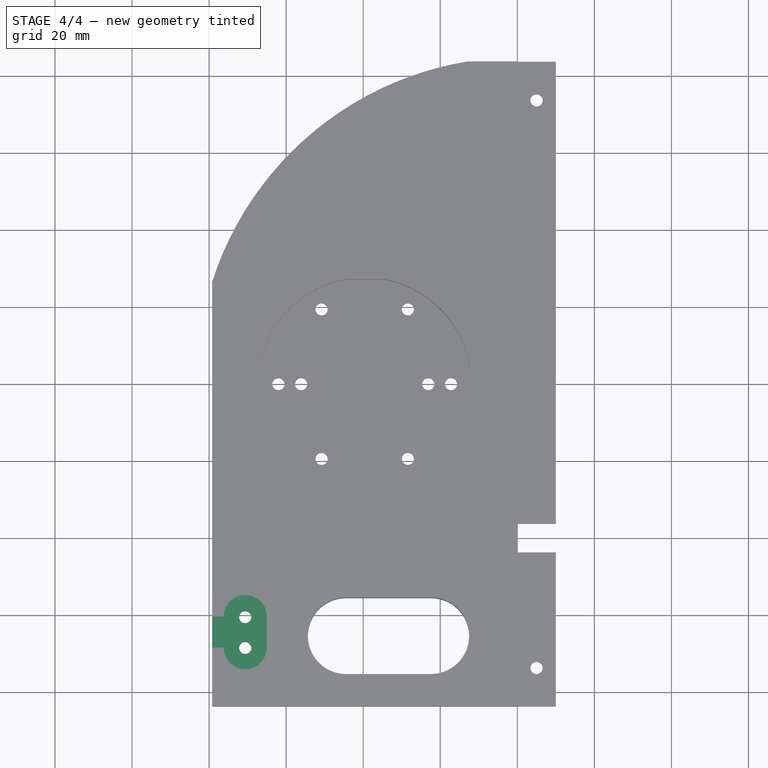
[diagram: stage 4 of 4 — top view after this stage's code; geometry added in this stage tinted green]
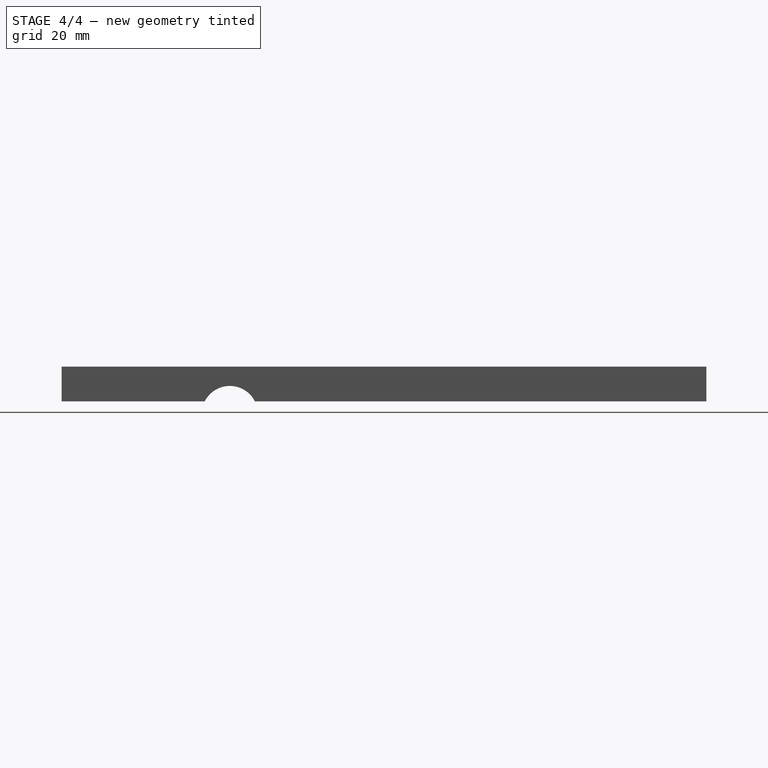
[diagram: stage 4 of 4 — right view after this stage's code; geometry added in this stage tinted green]
FEATURE [Spreadsheet::Sheet] Spreadsheet004  label="wire_hole_data"
  cells = A1=Name; B1=Value; A2=wire_xlen; B2(wire_xlen)==13mm; A3=wire_ylen; B3(wire_ylen)==4mm
FEATURE [Sketcher::SketchObject] Sketch010
  FullyConstrained = false
  MapMode = 5
  Support = -> [XY_Plane]
  sketch-geometry (4):
    g0: ArcOfCircle CenterX=-44.4583 CenterY=-65.454 CenterZ=0 NormalX=0 NormalY=0 NormalZ=1 AngleXU=0 Radius=9.90471 StartAngle=1.5708 EndAngle=4.71239
    g1: ArcOfCircle CenterX=-22.4192 CenterY=-65.454 CenterZ=0 NormalX=0 NormalY=0 NormalZ=1 AngleXU=0 Radius=9.90471 StartAngle=4.71239 EndAngle=7.85398
    g2: LineSegment StartX=-44.4583 StartY=-75.3587 StartZ=0 EndX=-22.4192 EndY=-75.3587 EndZ=0
    g3: LineSegment StartX=-22.4192 StartY=-55.5493 StartZ=0 EndX=-44.4583 EndY=-55.5493 EndZ=0
  constraints (6):
    c: Tangent(g0,g2) = -1.5708
    c: Tangent(g2,g1) = -1.5708
    c: Tangent(g1,g3) = -1.5708
    c: Tangent(g3,g0) = -1.5708
    c: Equal(g0,g1)
    c: Horizontal(g2)
FEATURE [PartDesign::Pocket] Pocket007
  BaseFeature = -> Pocket006
  Direction = (0,0,-1)
  Length = 5
  Length2 = 5
  Midplane = true
  Placement = pos=(0,0,0) rot=(1,0,0;1.5708rad)
  Profile = -> Sketch010
  ReferenceAxis = -> Sketch010 [N_Axis]
  Type = 1
FEATURE [PartDesign::Pocket] Pocket008
  BaseFeature = -> Pocket007
  Direction = (0,0,-1)
  Length = 3
  Length2 = 5
  Placement = pos=(0,0,0) rot=(1,0,0;1.5708rad)
  Profile = -> Sketch007
  ReferenceAxis = -> Sketch007 [N_Axis]
  Type = 0
  expr: Length = <<button_connect_data>>.clasp_thick
FEATURE [PartDesign::Body] Body
  Group = -> [Sketch002,Sketch,Pad,Pocket001,Sketch003,Pocket002,Sketch005,Sketch006,Pocket,Mirrored,Sketch007,Sketch008,Pocket004,Pocket005,Sketch009,Pocket006,Sketch010,Pocket007,Pocket008]
  Origin = -> Origin
  Tip = -> Pocket008
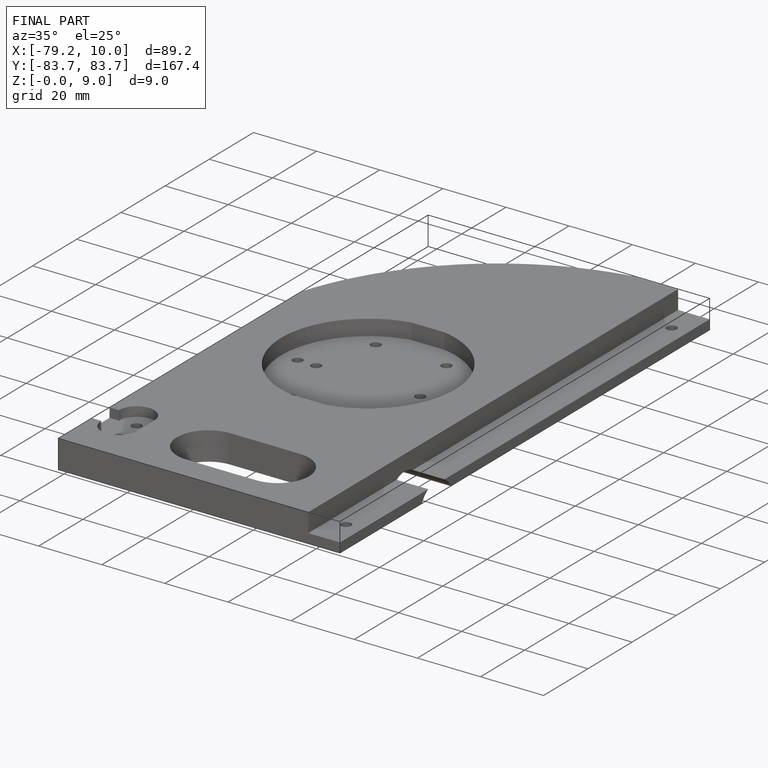
[diagram: finished part — iso view with bounding-box wireframe]
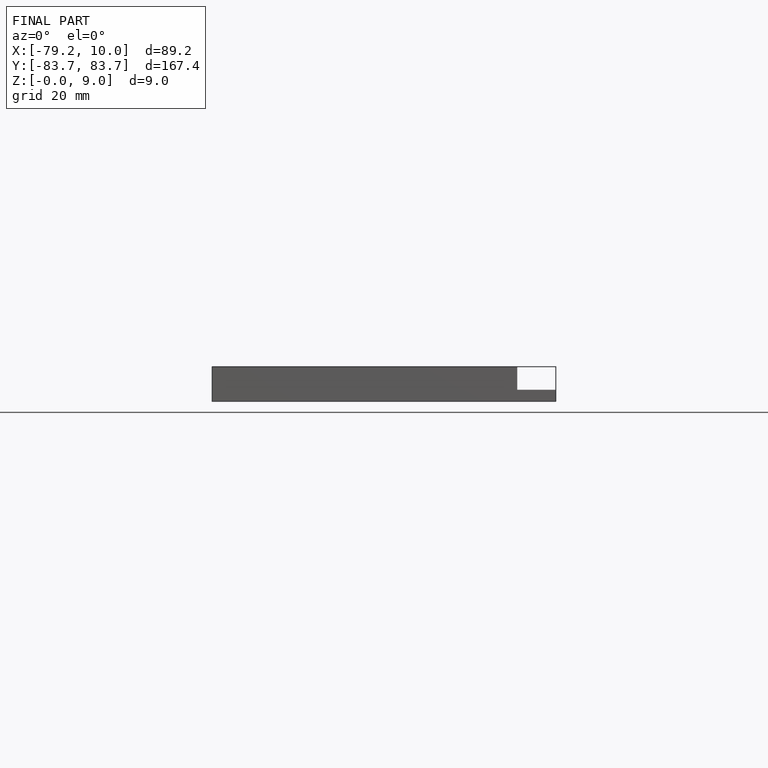
[diagram: finished part — front view with bounding-box wireframe]
